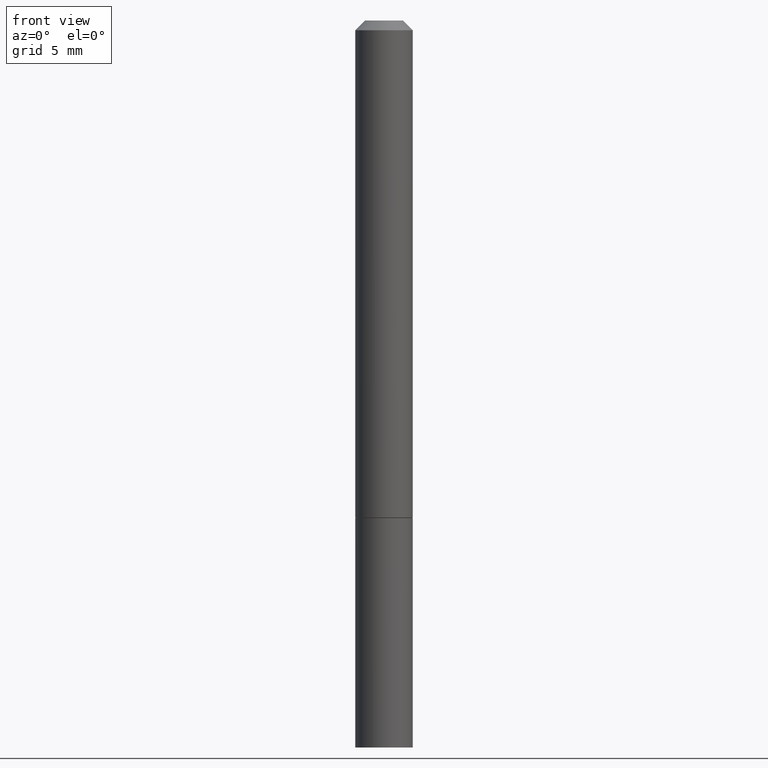
[diagram: clean part render]
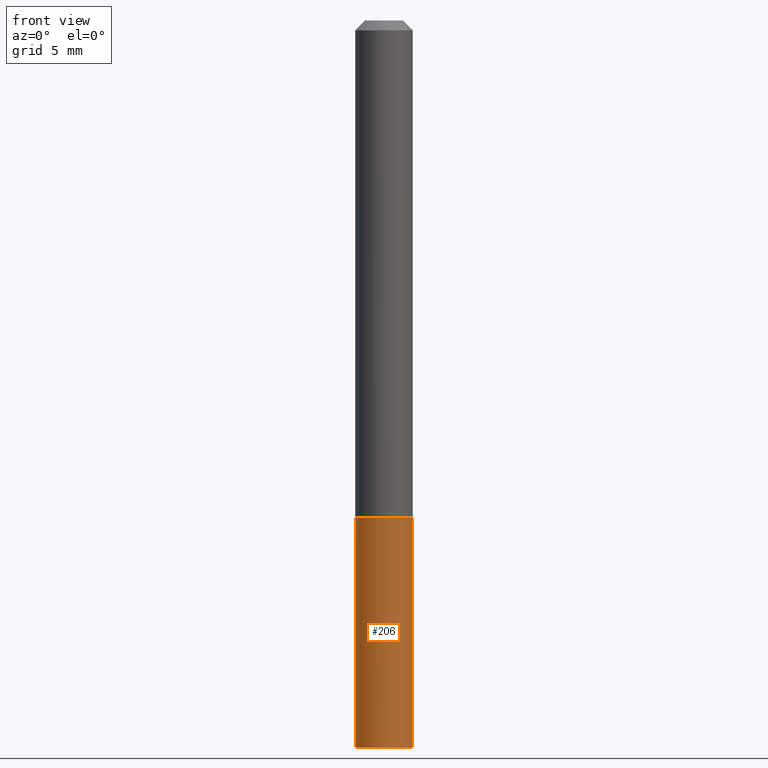
[diagram: same view with one face highlighted and labeled with its STEP entity id]
A machine part, front view. The second image highlights one B-rep face of the part: STEP entity #206.
In plain terms, the highlighted cylindrical surface (edge-blend (fillet) strip) has radius 1.4999 mm, axis along (-0, 0, 1).
Its self-contained STEP definition (entity closure, byte-faithful):
#6 = CARTESIAN_POINT ( 'NONE',  ( 2.503426416891723784E-29, -3.574229446573727613E-15, -1.023699999999999832 ) ) ;
#11 = VECTOR ( 'NONE', #103, 39.37007874015748143 ) ;
#12 = ORIENTED_EDGE ( 'NONE', *, *, #264, .T. ) ;
#23 = CARTESIAN_POINT ( 'NONE',  ( 0.05905000000000001914, -5.635949177160603791E-15, -1.496099999999999985 ) ) ;
#26 = AXIS2_PLACEMENT_3D ( 'NONE', #347, #57, #139 ) ;
#36 = EDGE_LOOP ( 'NONE', ( #194, #64, #12, #92 ) ) ;
#57 = DIRECTION ( 'NONE',  ( -2.445468806185136597E-29, 3.491481338843145583E-15, 1.000000000000000000 ) ) ;
#59 = VERTEX_POINT ( 'NONE', #23 ) ;
#63 = VERTEX_POINT ( 'NONE', #272 ) ;
#64 = ORIENTED_EDGE ( 'NONE', *, *, #68, .T. ) ;
#68 = EDGE_CURVE ( 'NONE', #63, #59, #331, .T. ) ;
#76 = VERTEX_POINT ( 'NONE', #269 ) ;
#79 = AXIS2_PLACEMENT_3D ( 'NONE', #6, #225, #246 ) ;
#82 = DIRECTION ( 'NONE',  ( -2.445468806185136877E-29, 3.491481338843145188E-15, 1.000000000000000000 ) ) ;
#92 = ORIENTED_EDGE ( 'NONE', *, *, #282, .F. ) ;
#103 = DIRECTION ( 'NONE',  ( -2.445468806185136877E-29, 3.491481338843145188E-15, 1.000000000000000000 ) ) ;
#109 = LINE ( 'NONE', #128, #322 ) ;
#112 = LINE ( 'NONE', #248, #11 ) ;
#119 = DIRECTION ( 'NONE',  ( 1.000000000000000000, -6.982962677686270655E-15, 0.000000000000000000 ) ) ;
#128 = CARTESIAN_POINT ( 'NONE',  ( 0.05905000000000001914, -4.123439461173741806E-16, 2.879382386107500921E-30 ) ) ;
#139 = DIRECTION ( 'NONE',  ( 1.000000000000000000, -6.982962677686266711E-15, 4.876176775795935793E-29 ) ) ;
#159 = EDGE_CURVE ( 'NONE', #63, #76, #112, .T. ) ;
#178 = DIRECTION ( 'NONE',  ( -2.445468806185136597E-29, 3.491481338843145583E-15, 1.000000000000000000 ) ) ;
#194 = ORIENTED_EDGE ( 'NONE', *, *, #159, .F. ) ;
#204 = CARTESIAN_POINT ( 'NONE',  ( 3.658665880933582389E-29, -5.223605231043229660E-15, -1.496099999999999985 ) ) ;
#206 = ADVANCED_FACE ( 'NONE', ( #311 ), #341, .T. ) ;
#225 = DIRECTION ( 'NONE',  ( -2.445468806185136597E-29, 3.491481338843145583E-15, 1.000000000000000000 ) ) ;
#246 = DIRECTION ( 'NONE',  ( 1.000000000000000000, -6.982962677686262766E-15, 0.000000000000000000 ) ) ;
#248 = CARTESIAN_POINT ( 'NONE',  ( -0.05905000000000001914, 4.195754854663392958E-16, -2.904631170795522943E-30 ) ) ;
#264 = EDGE_CURVE ( 'NONE', #59, #323, #109, .T. ) ;
#269 = CARTESIAN_POINT ( 'NONE',  ( -0.05905000000000001914, -3.979341853342139538E-15, -1.023699999999999832 ) ) ;
#272 = CARTESIAN_POINT ( 'NONE',  ( -0.05905000000000001914, -3.979341853342139538E-15, -1.496099999999999985 ) ) ;
#282 = EDGE_CURVE ( 'NONE', #76, #323, #354, .T. ) ;
#308 = AXIS2_PLACEMENT_3D ( 'NONE', #204, #178, #119 ) ;
#311 = FACE_OUTER_BOUND ( 'NONE', #36, .T. ) ;
#322 = VECTOR ( 'NONE', #82, 39.37007874015748143 ) ;
#323 = VERTEX_POINT ( 'NONE', #324 ) ;
#324 = CARTESIAN_POINT ( 'NONE',  ( 0.05905000000000001914, -3.986573392691101744E-15, -1.023699999999999832 ) ) ;
#331 = CIRCLE ( 'NONE', #308, 0.05905000000000001914 ) ;
#341 = CYLINDRICAL_SURFACE ( 'NONE', #26, 0.05905000000000001914 ) ;
#347 = CARTESIAN_POINT ( 'NONE',  ( 0.000000000000000000, 0.000000000000000000, 0.000000000000000000 ) ) ;
#354 = CIRCLE ( 'NONE', #79, 0.05905000000000001914 ) ;